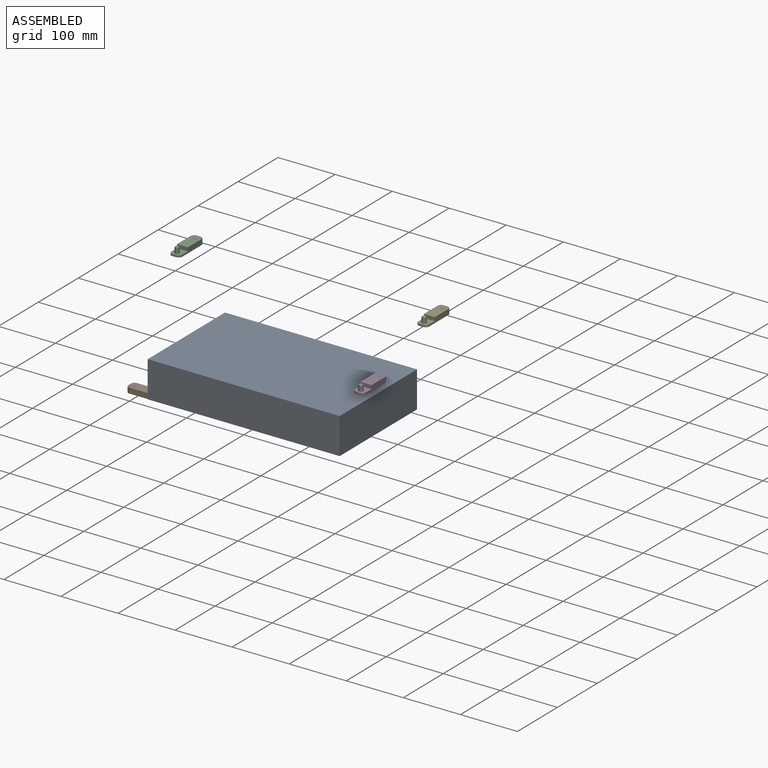
[diagram: assembled view]
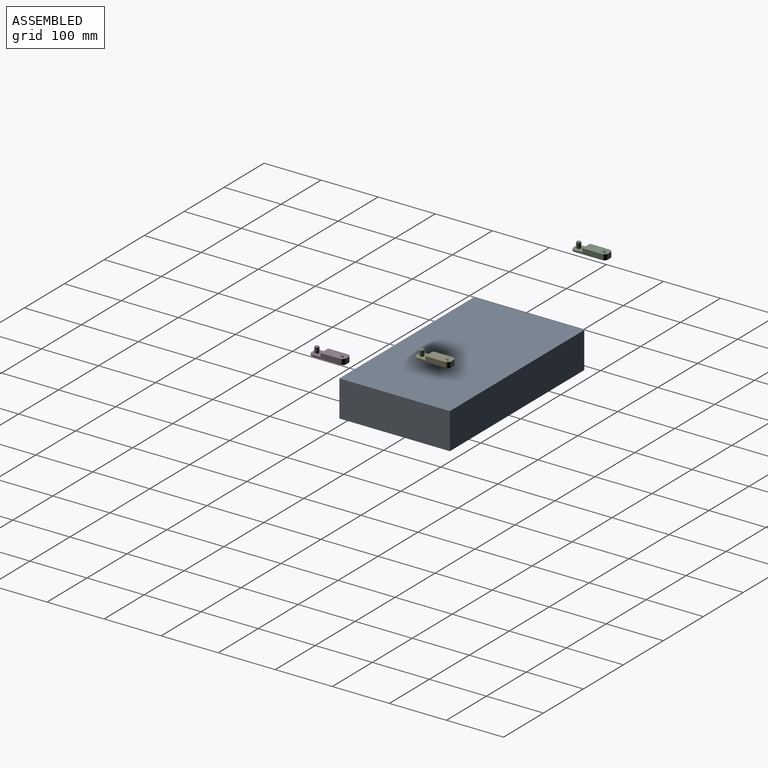
[diagram: assembled view, second angle]
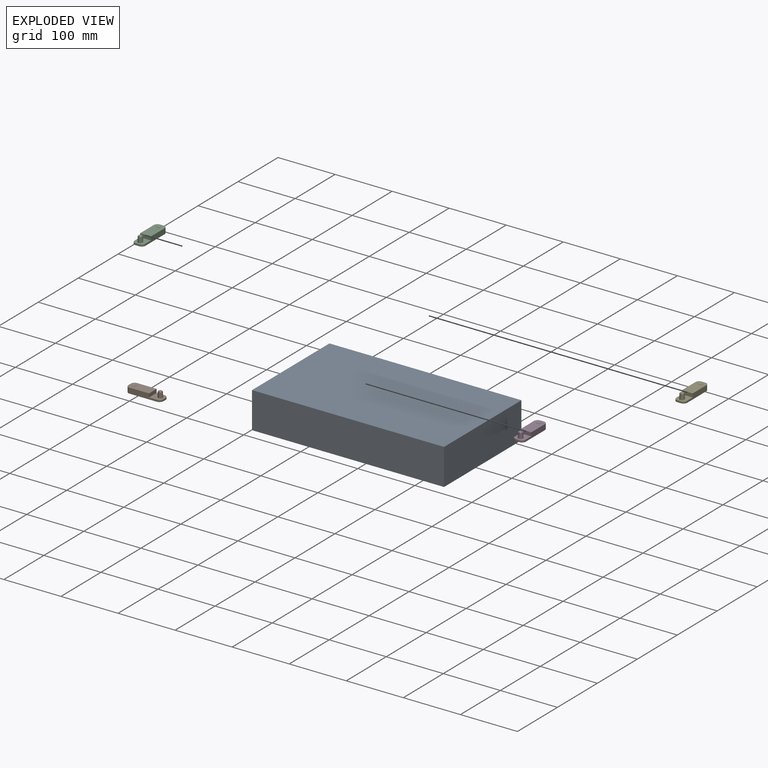
[diagram: exploded view]
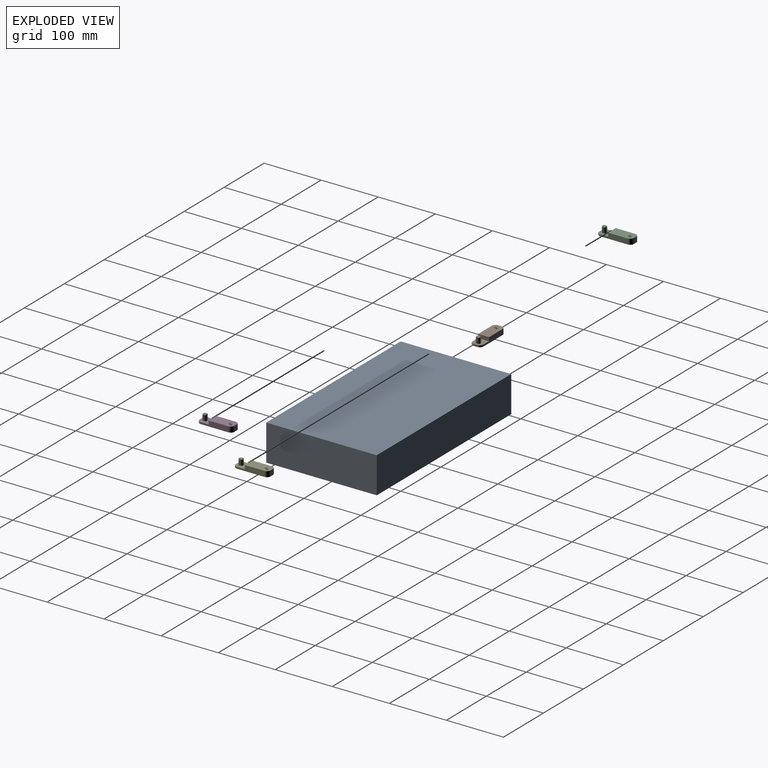
[diagram: exploded view, second angle]
ASSEMBLY  parts=5 mates=3
PART A: 14 faces, bbox 336.6x193.7x63.5 mm
  f0: plane 336.55x63.5mm, normal (0,1,0), area 21370.9mm2, adj f1,f3,f4,f5
  f1: plane 193.68x63.5mm, normal (-1,0,0), area 12298.4mm2, adj f0,f2,f4,f5
  f2: plane 336.55x63.5mm, normal (0,-1,0), area 21370.9mm2, adj f1,f3,f4,f5
  f3: plane 193.68x63.5mm, normal (1,0,0), area 12298.4mm2, adj f0,f2,f4,f5
  f4: plane 336.55x193.68mm, normal (0,0,1), area 65181.3mm2, adj f0,f1,f2,f3
  f5: plane 336.55x193.68mm, normal (0,0,-1), area 64967.2mm2, adj f0,f1,f2,f3,f7,f9,f11,f13
  f6: cone r=0mm half-angle=59deg, axis (0,0,-1), area 62.4mm2, adj f7
  f7: cylinder r=4.13mm len=18.54mm, axis (0,0,-1), area 480.9mm2, adj f5,f6
  f8: cone r=0mm half-angle=59deg, axis (0,0,-1), area 62.4mm2, adj f9
  f9: cylinder r=4.13mm len=18.54mm, axis (0,0,-1), area 480.9mm2, adj f5,f8
  f10: cone r=0mm half-angle=59deg, axis (0,0,-1), area 62.4mm2, adj f11
  f11: cylinder r=4.13mm len=18.54mm, axis (0,0,-1), area 480.9mm2, adj f5,f10
  f12: cone r=0mm half-angle=59deg, axis (0,0,-1), area 62.4mm2, adj f13
  f13: cylinder r=4.13mm len=18.54mm, axis (0,0,-1), area 480.9mm2, adj f5,f12
PART B: 35 faces, bbox 19.1x61x13.3 mm
  f0: cone r=4.13mm half-angle=2deg, axis (0,0,-1), area 44.4mm2, adj f9,f22,f24,f29
  f1: cone r=4.13mm half-angle=2deg, axis (0,0,-1), area 44.4mm2, adj f9,f19,f21,f30
  f2: cone r=4.13mm half-angle=2deg, axis (0,0,-1), area 44.4mm2, adj f9,f16,f18,f27
  f3: cone r=4.13mm half-angle=2deg, axis (0,0,-1), area 44.4mm2, adj f9,f15,f25,f28
  f4: plane 5.01x5.01mm, normal (0,0,1), area 20.3mm2, adj f17,f20,f23,f26,f27,f28,f29,f30
  f5: plane 9.53x6.35mm, normal (0,1,0), area 60.5mm2, adj f10,f12,f31,f34
  f6: plane 48.26x9.53mm, normal (-1,0,0), area 371mm2, adj f9,f10,f11,f12,f31,f32
  f7: plane 6.35x3.18mm, normal (0,-1,0), area 20.2mm2, adj f9,f10,f32,f33
  f8: plane 48.26x9.53mm, normal (1,0,0), area 371mm2, adj f9,f10,f11,f12,f33,f34
  f9: plane 20.32x19.05mm, normal (0,0,1), area 324.4mm2, adj f0,f1,f2,f3,f6,f7,f8,f11
  f10: plane 60.96x19.05mm, normal (0,0,-1), area 1113.7mm2, adj f5,f6,f7,f8,f13,f31,f32,f33
  f11: plane 19.05x6.35mm, normal (0,-1,0), area 121mm2, adj f6,f8,f9,f12
  f12: plane 40.64x19.05mm, normal (0,0,1), area 701.7mm2, adj f5,f6,f8,f11,f14,f31,f34
  f13: cylinder r=2.03mm len=7.37mm, axis (0,0,1), area 94mm2, adj f10,f14
  f14: cone r=2.03mm half-angle=45deg, axis (0,0,1), area 59.7mm2, adj f12,f13
  f15: plane 10.16x1.58mm, normal (1,0,0), area 13.9mm2, adj f3,f9,f17,f28
  f16: plane 10.16x1.58mm, normal (-1,0,0), area 13.9mm2, adj f2,f9,f17,f27
  f17: plane 10.16x1.27mm, normal (0,-1,0), area 12.9mm2, adj f4,f9,f15,f16,f27,f28
  f18: plane 10.16x1.58mm, normal (0,1,0), area 13.9mm2, adj f2,f9,f20,f27
  f19: plane 10.16x1.58mm, normal (0,-1,0), area 13.9mm2, adj f1,f9,f20,f30
  f20: plane 10.16x1.27mm, normal (1,0,0), area 12.9mm2, adj f4,f9,f18,f19,f27,f30
  f21: plane 10.16x1.58mm, normal (-1,0,0), area 13.9mm2, adj f1,f9,f23,f30
  f22: plane 10.16x1.58mm, normal (1,0,0), area 13.9mm2, adj f0,f9,f23,f29
  f23: plane 10.16x1.27mm, normal (0,1,0), area 12.9mm2, adj f4,f9,f21,f22,f29,f30
  f24: plane 10.16x1.58mm, normal (0,-1,0), area 13.9mm2, adj f0,f9,f26,f29
  f25: plane 10.16x1.58mm, normal (0,1,0), area 13.9mm2, adj f3,f9,f26,f28
  f26: plane 10.16x1.27mm, normal (-1,0,0), area 12.9mm2, adj f4,f9,f24,f25,f28,f29
  f27: torus R=2.55mm, axis (0,0,1), area 7.8mm2, adj f2,f4,f16,f17,f18,f20
  f28: torus R=2.55mm, axis (0,0,1), area 7.8mm2, adj f3,f4,f15,f17,f25,f26
  f29: torus R=2.55mm, axis (0,0,1), area 7.8mm2, adj f0,f4,f22,f23,f24,f26
  f30: torus R=2.55mm, axis (0,0,1), area 7.8mm2, adj f1,f4,f19,f20,f21,f23
  f31: cylinder r=6.35mm len=9.53mm, axis (0,0,1), area 95mm2, adj f5,f6,f10,f12
  f32: cylinder r=6.35mm len=6.35mm, axis (0,0,-1), area 31.7mm2, adj f6,f7,f9,f10
  f33: cylinder r=6.35mm len=6.35mm, axis (0,0,1), area 31.7mm2, adj f7,f8,f9,f10
  f34: cylinder r=6.35mm len=9.53mm, axis (0,0,-1), area 95mm2, adj f5,f8,f10,f12
PART C: same geometry as B
PART D: same geometry as B
PART E: same geometry as B
PLACE A at identity fixed
PLACE B rot(axis=(0,0,1),90deg) t=(-149.86,15.88,-3.18)mm
PLACE C t=(-219.88,140.39,158.52)mm
PLACE D t=(211.79,-16.22,115.59)mm
PLACE E t=(199.71,159.2,153.03)mm
MATE parallel B.f6 <-> A.f2  axis (0,-1,0) through (-184.44,6.35,1.21)mm
MATE planar B.f9 <-> A.f5  axis (0,0,1) through (-163.2,25.4,0)mm
MATE cylindrical B.f0 <-> A.f6  axis (0,0,1) through (-157.16,15.88,10.16)mm
